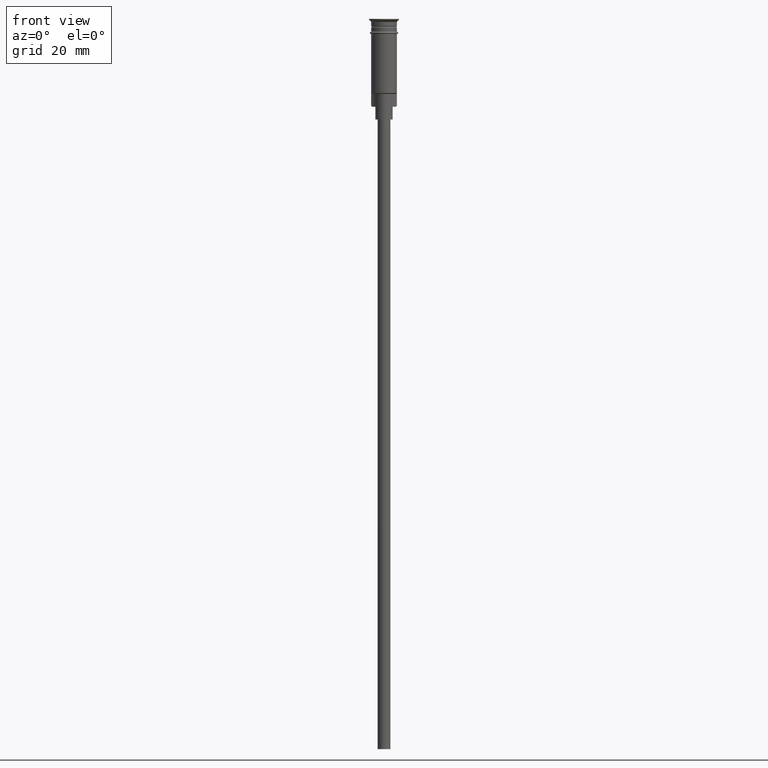
[diagram: clean part render]
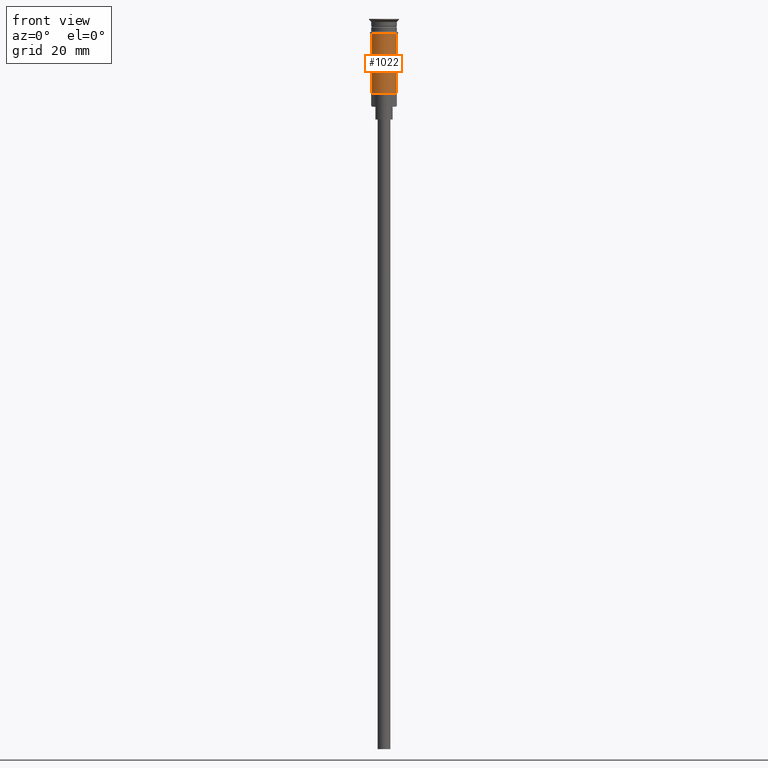
[diagram: same view with one face highlighted and labeled with its STEP entity id]
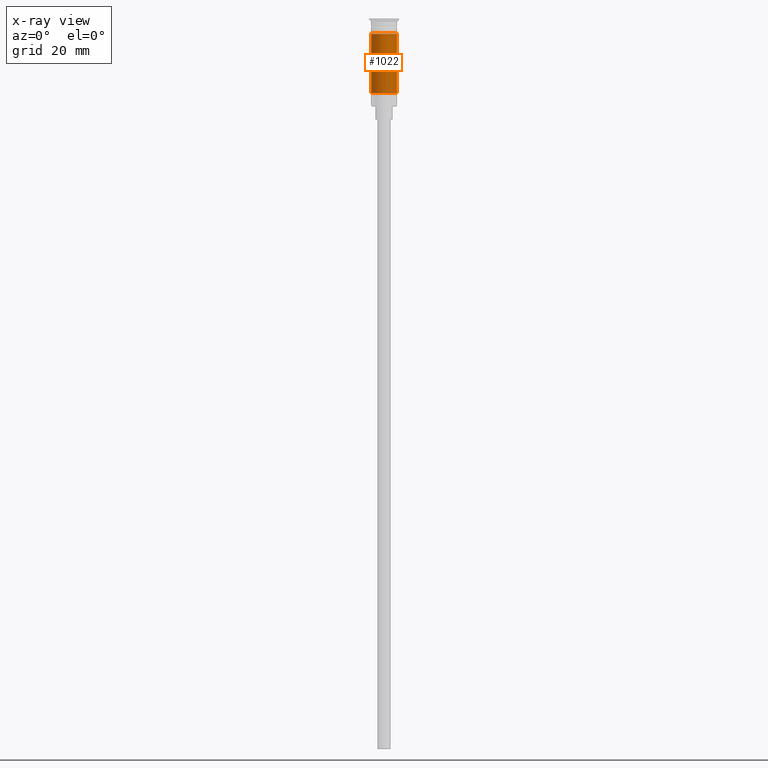
[diagram: x-ray of the same camera — body ghosted, the highlighted face saturated]
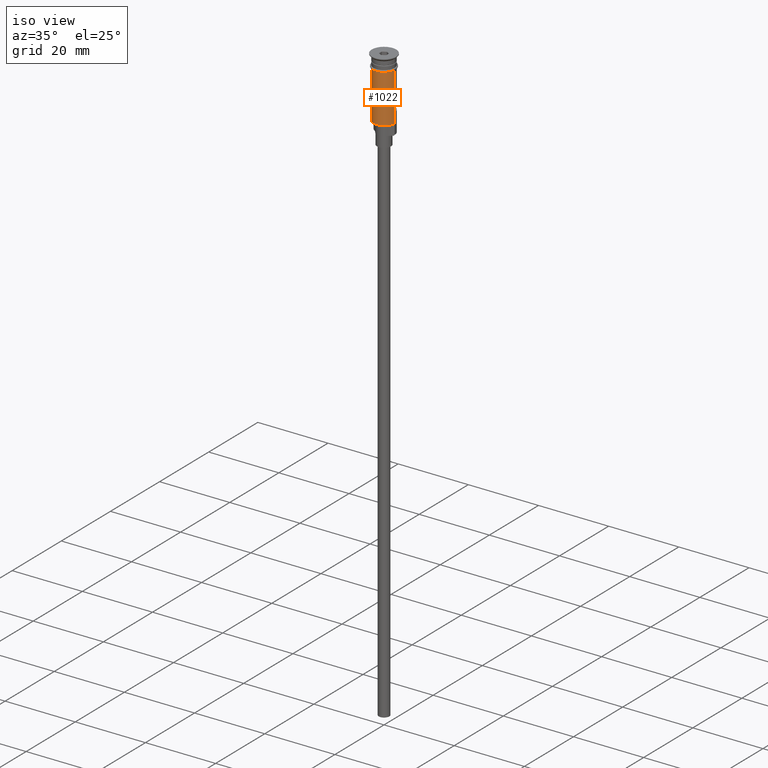
[diagram: same view with one face highlighted and labeled with its STEP entity id]
A machine part, front view. The second image highlights one B-rep face of the part: STEP entity #1022.
The next image is the same camera in x-ray: the body ghosted, the highlighted face saturated — about 0% of this face is hidden behind the body in this view.
A second angle (iso view) of the same face is appended — the face is thin or edge-on in the first view.
In plain terms, the highlighted cylindrical surface (edge-blend (fillet) strip) has radius 3 mm, axis along (-0, -0, 1).
Its self-contained STEP definition (entity closure, byte-faithful):
#35 = CARTESIAN_POINT ( 'NONE',  ( 2.999999999999996891, 3.673940397442055924E-16, -17.30000000000000782 ) ) ;
#97 = DIRECTION ( 'NONE',  ( -1.000000000000000000, 0.000000000000000000, 0.000000000000000000 ) ) ;
#101 = DIRECTION ( 'NONE',  ( -0.000000000000000000, -0.000000000000000000, 1.000000000000000000 ) ) ;
#138 = EDGE_CURVE ( 'NONE', #1568, #691, #351, .T. ) ;
#165 = LINE ( 'NONE', #396, #821 ) ;
#175 = DIRECTION ( 'NONE',  ( -0.000000000000000000, -0.000000000000000000, 1.000000000000000000 ) ) ;
#333 = VERTEX_POINT ( 'NONE', #35 ) ;
#340 = CARTESIAN_POINT ( 'NONE',  ( -2.999999999999995115, 0.000000000000000000, -17.30000000000000782 ) ) ;
#347 = CARTESIAN_POINT ( 'NONE',  ( 0.000000000000000000, 0.000000000000000000, -17.30000000000000782 ) ) ;
#351 = CIRCLE ( 'NONE', #1574, 2.999999999999998668 ) ;
#396 = CARTESIAN_POINT ( 'NONE',  ( 2.999999999999996891, 0.000000000000000000, 0.000000000000000000 ) ) ;
#421 = AXIS2_PLACEMENT_3D ( 'NONE', #347, #473, #97 ) ;
#462 = ORIENTED_EDGE ( 'NONE', *, *, #532, .T. ) ;
#473 = DIRECTION ( 'NONE',  ( -0.000000000000000000, -0.000000000000000000, 1.000000000000000000 ) ) ;
#476 = DIRECTION ( 'NONE',  ( 1.000000000000000000, 0.000000000000000000, 0.000000000000000000 ) ) ;
#532 = EDGE_CURVE ( 'NONE', #1066, #333, #1465, .T. ) ;
#554 = CARTESIAN_POINT ( 'NONE',  ( -2.999999999999996891, 3.673940397442055924E-16, 0.000000000000000000 ) ) ;
#691 = VERTEX_POINT ( 'NONE', #871 ) ;
#697 = ORIENTED_EDGE ( 'NONE', *, *, #896, .T. ) ;
#821 = VECTOR ( 'NONE', #175, 1000.000000000000000 ) ;
#871 = CARTESIAN_POINT ( 'NONE',  ( 2.999999999999998668, 0.000000000000000000, -3.499999999999998668 ) ) ;
#896 = EDGE_CURVE ( 'NONE', #333, #691, #165, .T. ) ;
#928 = DIRECTION ( 'NONE',  ( -0.000000000000000000, -0.000000000000000000, 1.000000000000000000 ) ) ;
#953 = FACE_OUTER_BOUND ( 'NONE', #1072, .T. ) ;
#1022 = ADVANCED_FACE ( 'NONE', ( #953 ), #1562, .T. ) ;
#1050 = DIRECTION ( 'NONE',  ( -0.000000000000000000, -0.000000000000000000, 1.000000000000000000 ) ) ;
#1053 = CARTESIAN_POINT ( 'NONE',  ( 0.000000000000000000, 0.000000000000000000, 0.000000000000000000 ) ) ;
#1066 = VERTEX_POINT ( 'NONE', #340 ) ;
#1072 = EDGE_LOOP ( 'NONE', ( #1335, #462, #697, #1187 ) ) ;
#1181 = DIRECTION ( 'NONE',  ( 1.000000000000000000, 0.000000000000000000, 0.000000000000000000 ) ) ;
#1187 = ORIENTED_EDGE ( 'NONE', *, *, #138, .F. ) ;
#1196 = CARTESIAN_POINT ( 'NONE',  ( -2.999999999999999112, 3.673940397442058389E-16, -3.499999999999998668 ) ) ;
#1236 = CARTESIAN_POINT ( 'NONE',  ( 0.000000000000000000, 0.000000000000000000, -3.499999999999998668 ) ) ;
#1249 = EDGE_CURVE ( 'NONE', #1066, #1568, #1302, .T. ) ;
#1302 = LINE ( 'NONE', #554, #1468 ) ;
#1335 = ORIENTED_EDGE ( 'NONE', *, *, #1249, .F. ) ;
#1416 = AXIS2_PLACEMENT_3D ( 'NONE', #1053, #928, #1181 ) ;
#1465 = CIRCLE ( 'NONE', #421, 2.999999999999996891 ) ;
#1468 = VECTOR ( 'NONE', #1050, 1000.000000000000000 ) ;
#1562 = CYLINDRICAL_SURFACE ( 'NONE', #1416, 2.999999999999996891 ) ;
#1568 = VERTEX_POINT ( 'NONE', #1196 ) ;
#1574 = AXIS2_PLACEMENT_3D ( 'NONE', #1236, #101, #476 ) ;